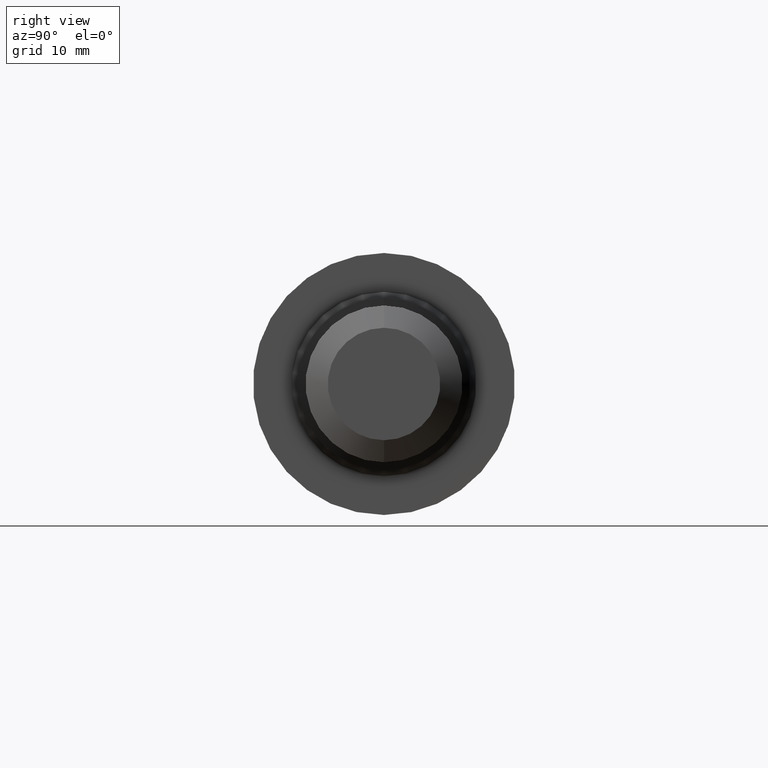
[diagram: clean part render]
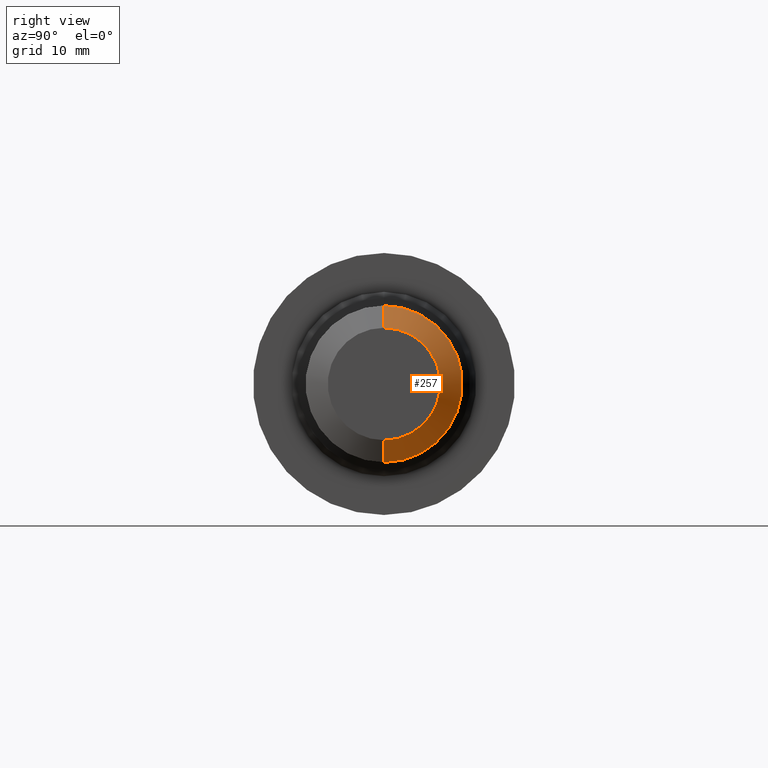
[diagram: same view with one face highlighted and labeled with its STEP entity id]
A machine part, right view. The second image highlights one B-rep face of the part: STEP entity #257.
In plain terms, the highlighted conical surface has half-angle 60 deg.
Its self-contained STEP definition (entity closure, byte-faithful):
#47 = FACE_OUTER_BOUND ( 'NONE', #691, .T. ) ;
#54 = CARTESIAN_POINT ( 'NONE',  ( 3.939999999999999947, 0.0000000000000000000, 0.3509359353944886961 ) ) ;
#55 = AXIS2_PLACEMENT_3D ( 'NONE', #437, #319, #77 ) ;
#70 = VERTEX_POINT ( 'NONE', #337 ) ;
#77 = DIRECTION ( 'NONE',  ( 0.0000000000000000000, 0.0000000000000000000, 1.000000000000000000 ) ) ;
#111 = ORIENTED_EDGE ( 'NONE', *, *, #387, .F. ) ;
#115 = LINE ( 'NONE', #190, #658 ) ;
#140 = CONICAL_SURFACE ( 'NONE', #333, 0.3509359353944886961, 1.047197551196600074 ) ;
#184 = VERTEX_POINT ( 'NONE', #54 ) ;
#186 = ORIENTED_EDGE ( 'NONE', *, *, #345, .T. ) ;
#190 = CARTESIAN_POINT ( 'NONE',  ( 3.939999999999999947, 4.297725699866428699E-17, -0.3509359353944886961 ) ) ;
#212 = CARTESIAN_POINT ( 'NONE',  ( 3.939999999999999947, 0.0000000000000000000, 0.0000000000000000000 ) ) ;
#222 = CARTESIAN_POINT ( 'NONE',  ( 3.939999999999999947, 0.0000000000000000000, 0.3509359353944886961 ) ) ;
#257 = ADVANCED_FACE ( 'NONE', ( #47 ), #140, .T. ) ;
#274 = DIRECTION ( 'NONE',  ( 0.0000000000000000000, 0.0000000000000000000, 1.000000000000000000 ) ) ;
#309 = DIRECTION ( 'NONE',  ( -1.000000000000000000, -0.0000000000000000000, -0.0000000000000000000 ) ) ;
#313 = CARTESIAN_POINT ( 'NONE',  ( 3.859999999999999876, 0.0000000000000000000, 0.4894999999999999907 ) ) ;
#319 = DIRECTION ( 'NONE',  ( -1.000000000000000000, -0.0000000000000000000, -0.0000000000000000000 ) ) ;
#325 = CIRCLE ( 'NONE', #55, 0.3509359353944886961 ) ;
#333 = AXIS2_PLACEMENT_3D ( 'NONE', #212, #309, #366 ) ;
#337 = CARTESIAN_POINT ( 'NONE',  ( 3.939999999999999947, 5.146185890846361159E-17, -0.3509359353944886961 ) ) ;
#345 = EDGE_CURVE ( 'NONE', #70, #395, #115, .T. ) ;
#366 = DIRECTION ( 'NONE',  ( 0.0000000000000000000, 0.0000000000000000000, 1.000000000000000000 ) ) ;
#387 = EDGE_CURVE ( 'NONE', #184, #632, #641, .T. ) ;
#395 = VERTEX_POINT ( 'NONE', #485 ) ;
#399 = EDGE_CURVE ( 'NONE', #632, #395, #621, .T. ) ;
#437 = CARTESIAN_POINT ( 'NONE',  ( 3.939999999999999947, 0.0000000000000000000, 0.0000000000000000000 ) ) ;
#459 = EDGE_CURVE ( 'NONE', #184, #70, #325, .T. ) ;
#476 = VECTOR ( 'NONE', #600, 39.37007874015748854 ) ;
#478 = AXIS2_PLACEMENT_3D ( 'NONE', #648, #594, #274 ) ;
#485 = CARTESIAN_POINT ( 'NONE',  ( 3.859999999999999876, 5.994646081826293618E-17, -0.4894999999999999907 ) ) ;
#501 = ORIENTED_EDGE ( 'NONE', *, *, #399, .F. ) ;
#565 = DIRECTION ( 'NONE',  ( -0.4999999999999979461, 1.060575238724908024E-16, -0.8660254037844397068 ) ) ;
#594 = DIRECTION ( 'NONE',  ( -1.000000000000000000, -0.0000000000000000000, -0.0000000000000000000 ) ) ;
#600 = DIRECTION ( 'NONE',  ( -0.4999999999999979461, 0.0000000000000000000, 0.8660254037844397068 ) ) ;
#621 = CIRCLE ( 'NONE', #478, 0.4894999999999999907 ) ;
#632 = VERTEX_POINT ( 'NONE', #313 ) ;
#641 = LINE ( 'NONE', #222, #476 ) ;
#648 = CARTESIAN_POINT ( 'NONE',  ( 3.859999999999999876, 0.0000000000000000000, 0.0000000000000000000 ) ) ;
#658 = VECTOR ( 'NONE', #565, 39.37007874015748854 ) ;
#660 = ORIENTED_EDGE ( 'NONE', *, *, #459, .T. ) ;
#691 = EDGE_LOOP ( 'NONE', ( #660, #186, #501, #111 ) ) ;